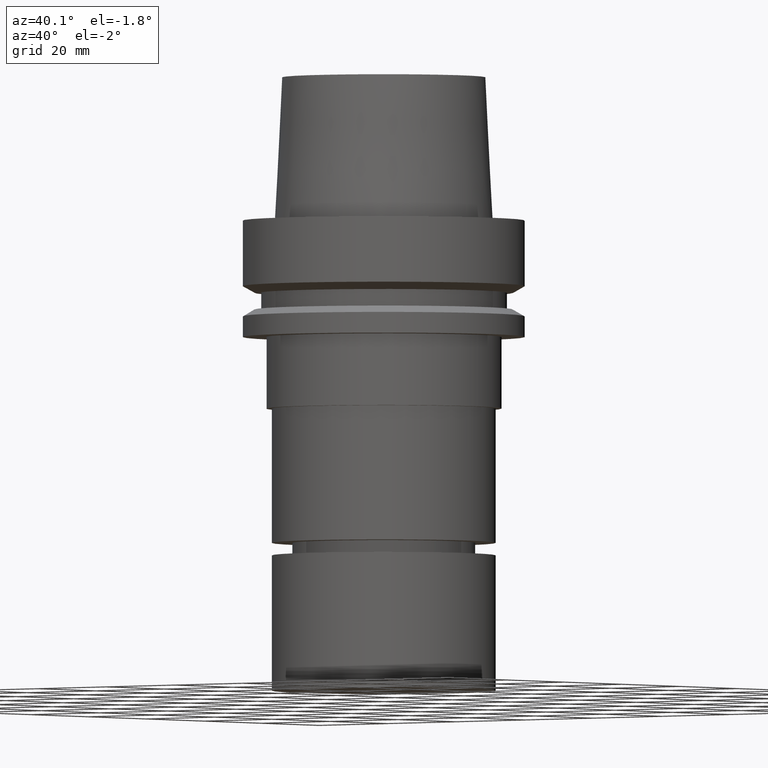
[diagram: clean part render]
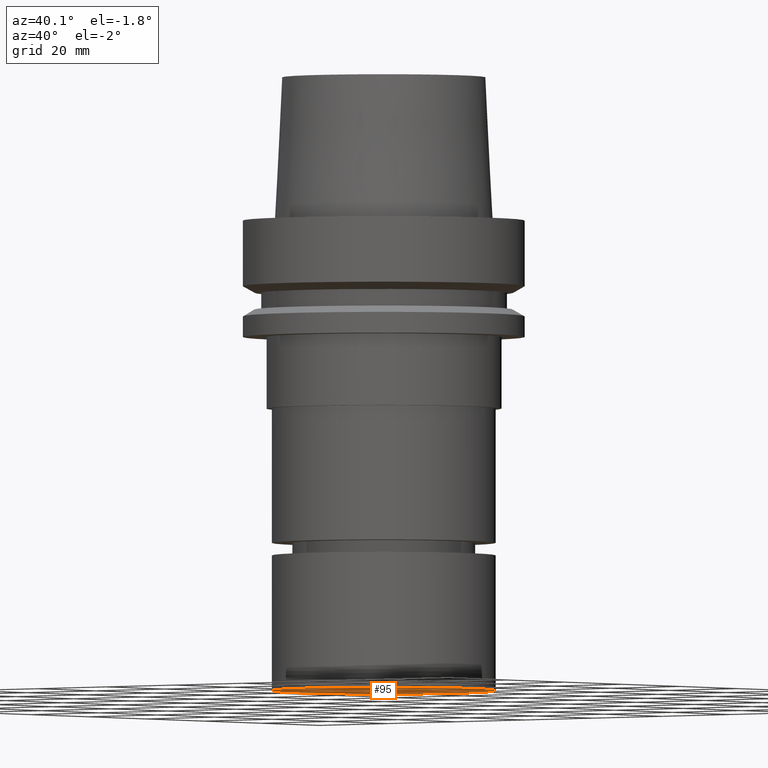
[diagram: same view with one face highlighted and labeled with its STEP entity id]
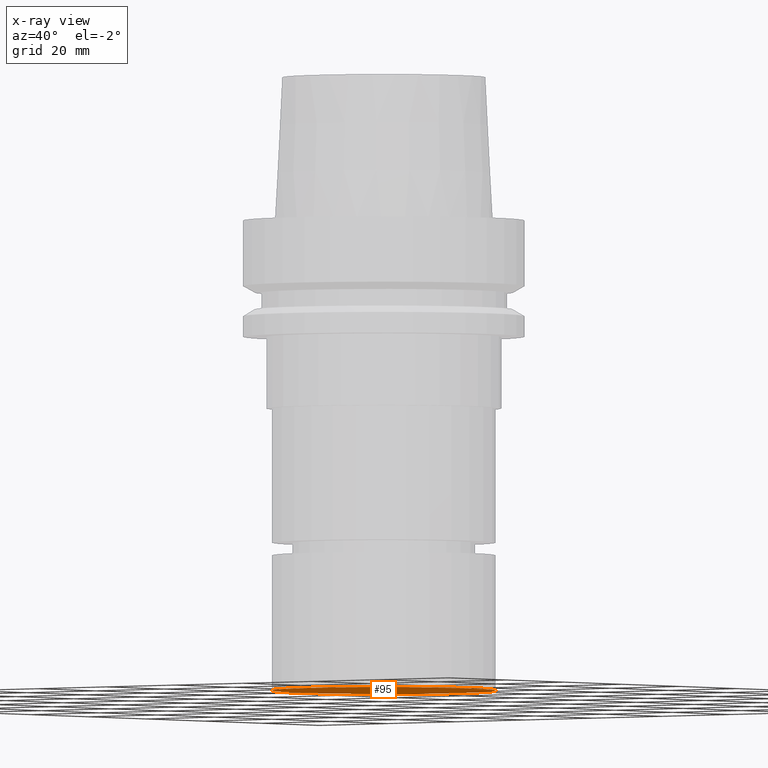
[diagram: x-ray of the same camera — body ghosted, the highlighted face saturated]
A machine part, auxiliary view. The second image highlights one B-rep face of the part: STEP entity #95.
The next image is the same camera in x-ray: the body ghosted, the highlighted face saturated — about 0% of this face is hidden behind the body in this view.
In plain terms, the highlighted planar face has unit normal (0, 0, -1).
Its self-contained STEP definition (entity closure, byte-faithful):
#86=EDGE_CURVE('Unnamed[1]',#224,#224,#225,.T.);
#95=ADVANCED_FACE('Unnamed[1]',(#235),#236,.T.);
#224=VERTEX_POINT('',#418);
#225=CIRCLE('',#419,25.0);
#235=FACE_OUTER_BOUND('',#431,.T.);
#236=PLANE('',#432);
#418=CARTESIAN_POINT('',(6.4293956955236E-015,25.0,-105.0));
#419=AXIS2_PLACEMENT_3D('',#637,#638,#639);
#431=EDGE_LOOP('',(#647));
#432=AXIS2_PLACEMENT_3D('',#648,#649,#650);
#637=CARTESIAN_POINT('',(6.4293956955236E-015,1.28587913910472E-014,-105.0));
#638=DIRECTION('',(6.12323399573677E-017,1.22464679914735E-016,-1.0));
#639=DIRECTION('',(-1.23259516440783E-032,1.0,1.22464679914735E-016));
#647=ORIENTED_EDGE('',*,*,#86,.T.);
#648=CARTESIAN_POINT('',(6.4293956955236E-015,12.5,-105.0));
#649=DIRECTION('',(6.12323399573677E-017,1.22464679914735E-016,-1.0));
#650=DIRECTION('',(-1.23259516440783E-032,1.0,1.22464679914735E-016));